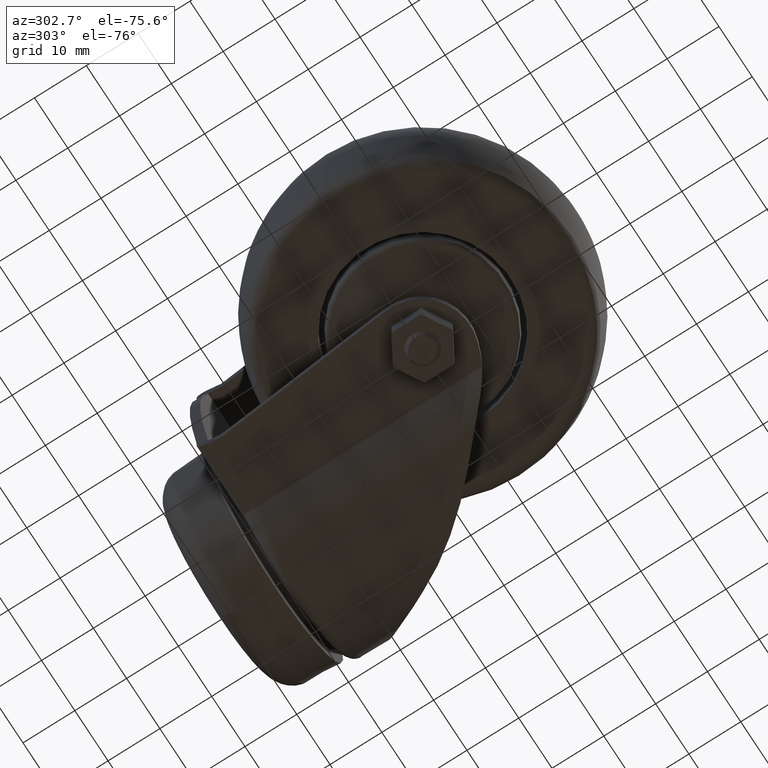
[diagram: clean part render]
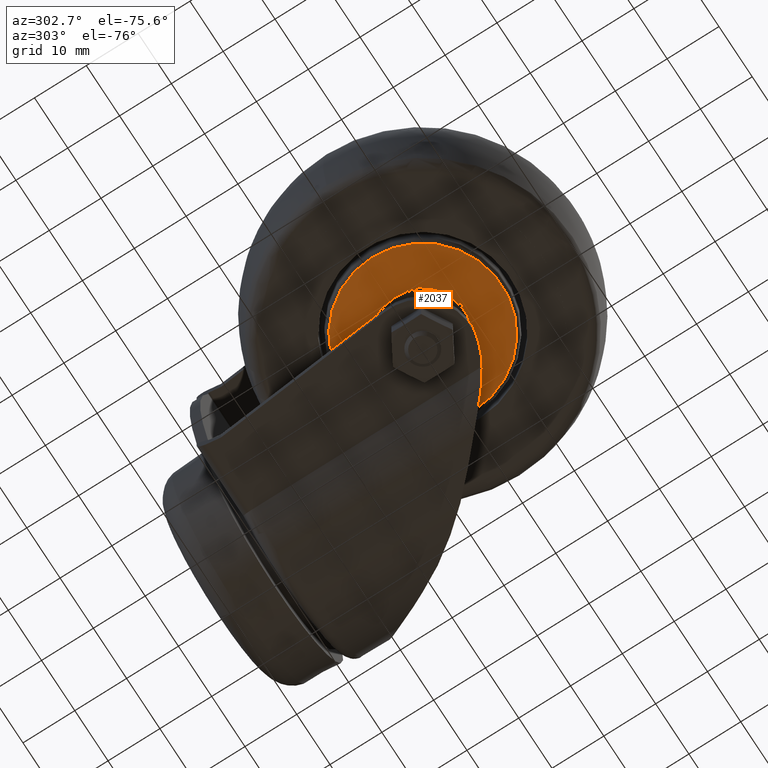
[diagram: same view with one face highlighted and labeled with its STEP entity id]
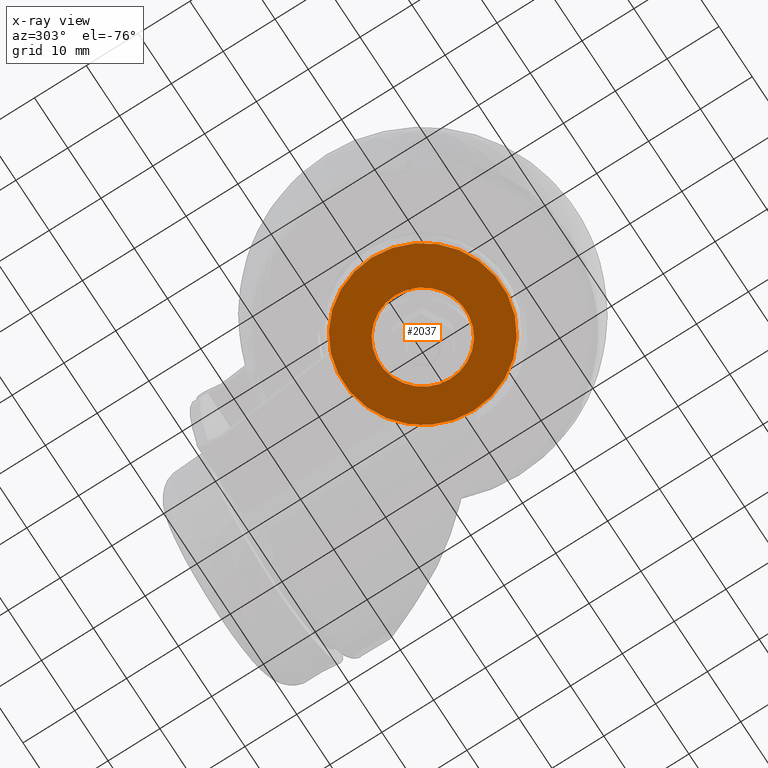
[diagram: x-ray of the same camera — body ghosted, the highlighted face saturated]
A machine part, auxiliary view. The second image highlights one B-rep face of the part: STEP entity #2037.
The next image is the same camera in x-ray: the body ghosted, the highlighted face saturated — about 0% of this face is hidden behind the body in this view.
In plain terms, the highlighted conical surface has half-angle 74 deg.
Its self-contained STEP definition (entity closure, byte-faithful):
#417=FACE_BOUND('',#752,.T.);
#542=FACE_OUTER_BOUND('',#751,.T.);
#751=EDGE_LOOP('',(#1741));
#752=EDGE_LOOP('',(#1742));
#896=CIRCLE('',#2294,8.3175482605573);
#897=CIRCLE('',#2296,15.275637355817);
#1069=VERTEX_POINT('',#3694);
#1070=VERTEX_POINT('',#3697);
#1301=EDGE_CURVE('',#1069,#1069,#896,.T.);
#1302=EDGE_CURVE('',#1070,#1070,#897,.T.);
#1741=ORIENTED_EDGE('',*,*,#1301,.T.);
#1742=ORIENTED_EDGE('',*,*,#1302,.F.);
#1879=CONICAL_SURFACE('',#2295,15.275637355817,1.2915436464758);
#2037=ADVANCED_FACE('',(#542,#417),#1879,.T.);
#2294=AXIS2_PLACEMENT_3D('',#3695,#2841,#2842);
#2295=AXIS2_PLACEMENT_3D('',#3696,#2843,#2844);
#2296=AXIS2_PLACEMENT_3D('',#3698,#2845,#2846);
#2841=DIRECTION('center_axis',(1.,0.,0.));
#2842=DIRECTION('ref_axis',(0.,0.,-1.));
#2843=DIRECTION('center_axis',(1.,0.,0.));
#2844=DIRECTION('ref_axis',(0.,0.,-1.));
#2845=DIRECTION('center_axis',(1.,0.,0.));
#2846=DIRECTION('ref_axis',(0.,0.,-1.));
#3694=CARTESIAN_POINT('',(0.0193691520308402,0.,-8.3175482605573));
#3695=CARTESIAN_POINT('Origin',(0.0193691520308402,0.,0.));
#3696=CARTESIAN_POINT('Origin',(2.01456909379523,0.,0.));
#3697=CARTESIAN_POINT('',(2.01456909379523,0.,-15.275637355817));
#3698=CARTESIAN_POINT('Origin',(2.01456909379523,0.,0.));